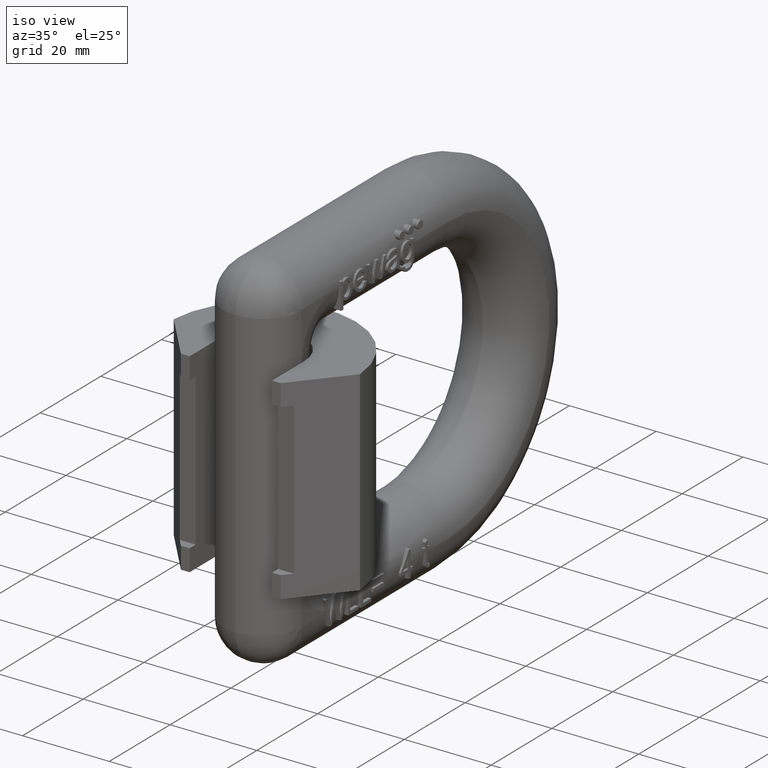
[diagram: clean part render]
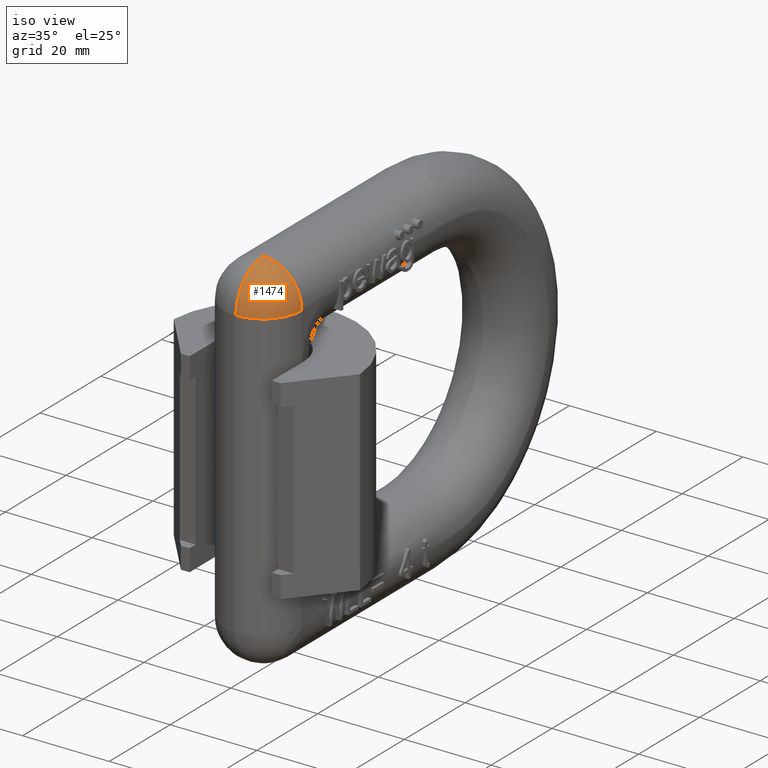
[diagram: same view with one face highlighted and labeled with its STEP entity id]
A machine part, iso view. The second image highlights one B-rep face of the part: STEP entity #1474.
In plain terms, the highlighted face is a freeform B-spline surface patch.
Its self-contained STEP definition (entity closure, byte-faithful):
#153=(
BOUNDED_SURFACE()
B_SPLINE_SURFACE(3,3,((#15701,#15702,#15703,#15704),(#15705,#15706,#15707,
#15708),(#15709,#15710,#15711,#15712),(#15713,#15714,#15715,#15716)),
 .UNSPECIFIED.,.F.,.F.,.F.)
B_SPLINE_SURFACE_WITH_KNOTS((4,4),(4,4),(0.,1.),(0.,1.),.UNSPECIFIED.)
GEOMETRIC_REPRESENTATION_ITEM()
RATIONAL_B_SPLINE_SURFACE(((1.,0.804737854124365,0.804737854124365,1.),
(0.804737854124365,0.647603013860688,0.647603013860688,0.804737854124365),
(0.804737854124365,0.647603013860688,0.647603013860688,0.804737854124365),
(1.,0.804737854124365,0.804737854124365,1.)))
REPRESENTATION_ITEM('')
SURFACE()
);
#1474=ADVANCED_FACE('',(#1976),#153,.T.);
#1976=FACE_OUTER_BOUND('',#2444,.T.);
#2444=EDGE_LOOP('',(#4410,#4411,#4412,#4413));
#2646=CIRCLE('',#8745,9.);
#2712=CIRCLE('',#8998,0.100000000000001);
#2750=CIRCLE('',#9069,8.9);
#2757=CIRCLE('',#9102,8.9);
#4410=ORIENTED_EDGE('',*,*,#7016,.T.);
#4411=ORIENTED_EDGE('',*,*,#6238,.F.);
#4412=ORIENTED_EDGE('',*,*,#7102,.F.);
#4413=ORIENTED_EDGE('',*,*,#6858,.F.);
#5368=VERTEX_POINT('',#11107);
#5370=VERTEX_POINT('',#11113);
#5781=VERTEX_POINT('',#14365);
#5782=VERTEX_POINT('',#14367);
#6238=EDGE_CURVE('',#5368,#5370,#2646,.T.);
#6858=EDGE_CURVE('',#5781,#5782,#2712,.T.);
#7016=EDGE_CURVE('',#5781,#5370,#2750,.T.);
#7102=EDGE_CURVE('',#5782,#5368,#2757,.T.);
#8745=AXIS2_PLACEMENT_3D('',#11112,#9359,#9360);
#8998=AXIS2_PLACEMENT_3D('',#14366,#10192,#10193);
#9069=AXIS2_PLACEMENT_3D('',#14994,#10398,#10399);
#9102=AXIS2_PLACEMENT_3D('',#15700,#10486,#10487);
#9359=DIRECTION('',(-1.,0.,-2.34291072916505E-15));
#9360=DIRECTION('',(2.34308136164923E-15,0.,-1.));
#10192=DIRECTION('',(1.,0.,2.34291072916505E-15));
#10193=DIRECTION('',(0.,0.,-1.00000000000002));
#10398=DIRECTION('',(-1.82665269393283E-30,-1.,7.79651000439015E-16));
#10399=DIRECTION('',(-2.34352126889774E-15,7.79651000439014E-16,1.));
#10486=DIRECTION('',(2.34291072916505E-15,0.,-1.));
#10487=DIRECTION('',(-1.,0.,-2.33895300131704E-15));
#11107=CARTESIAN_POINT('',(0.0999999999999238,1.49999999999998,33.));
#11112=CARTESIAN_POINT('',(0.0999999999999238,10.5,33.));
#11113=CARTESIAN_POINT('',(0.0999999999999027,10.5,42.));
#14365=CARTESIAN_POINT('',(8.99999999999992,10.5,33.1000000000001));
#14366=CARTESIAN_POINT('',(8.99999999999992,10.5,33.));
#14367=CARTESIAN_POINT('',(8.99999999999992,10.4,33.));
#14994=CARTESIAN_POINT('',(0.0999999999999236,10.5,33.1));
#15700=CARTESIAN_POINT('',(0.0999999999999238,10.4,33.));
#15701=CARTESIAN_POINT('',(8.99999999999992,10.5,33.1));
#15702=CARTESIAN_POINT('',(8.99999999999992,10.4414213562373,33.1));
#15703=CARTESIAN_POINT('',(8.99999999999993,10.4,33.0585786437627));
#15704=CARTESIAN_POINT('',(8.99999999999993,10.4,33.));
#15705=CARTESIAN_POINT('',(8.99999999999991,10.5,38.3134992948795));
#15706=CARTESIAN_POINT('',(8.99999999999991,7.38742417671947,38.3134992948795));
#15707=CARTESIAN_POINT('',(8.99999999999992,5.18650070512052,36.1125758232805));
#15708=CARTESIAN_POINT('',(8.99999999999993,5.18650070512052,33.));
#15709=CARTESIAN_POINT('',(5.31349929487936,10.5,42.));
#15710=CARTESIAN_POINT('',(5.31349929487936,5.22792206135784,42.));
#15711=CARTESIAN_POINT('',(5.31349929487936,1.49999999999998,38.2720779386422));
#15712=CARTESIAN_POINT('',(5.31349929487938,1.49999999999998,33.));
#15713=CARTESIAN_POINT('',(0.0999999999998999,10.5,42.));
#15714=CARTESIAN_POINT('',(0.0999999999998999,5.22792206135784,42.));
#15715=CARTESIAN_POINT('',(0.0999999999999086,1.49999999999998,38.2720779386422));
#15716=CARTESIAN_POINT('',(0.099999999999921,1.49999999999998,33.));